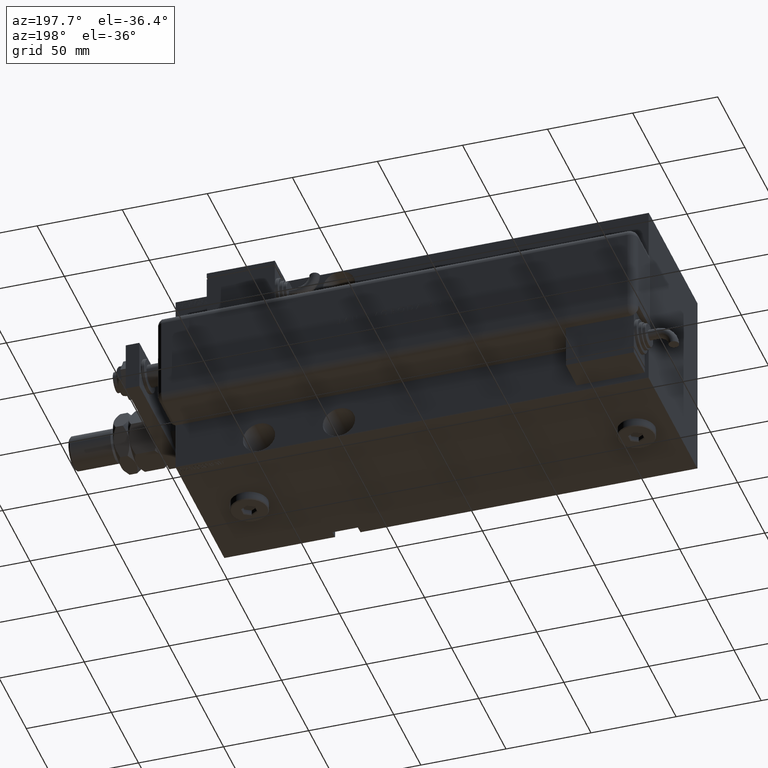
[diagram: clean part render]
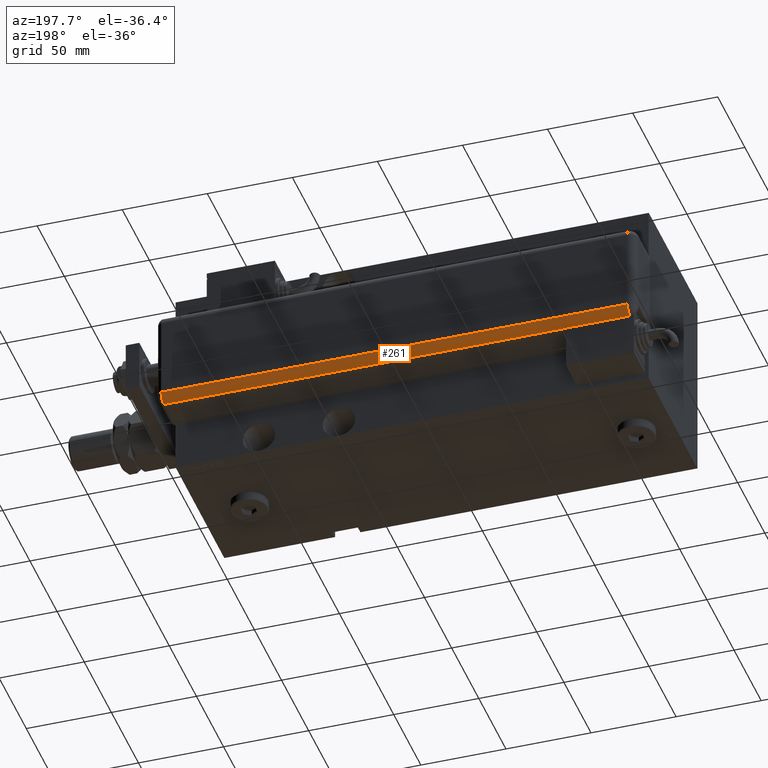
[diagram: same view with one face highlighted and labeled with its STEP entity id]
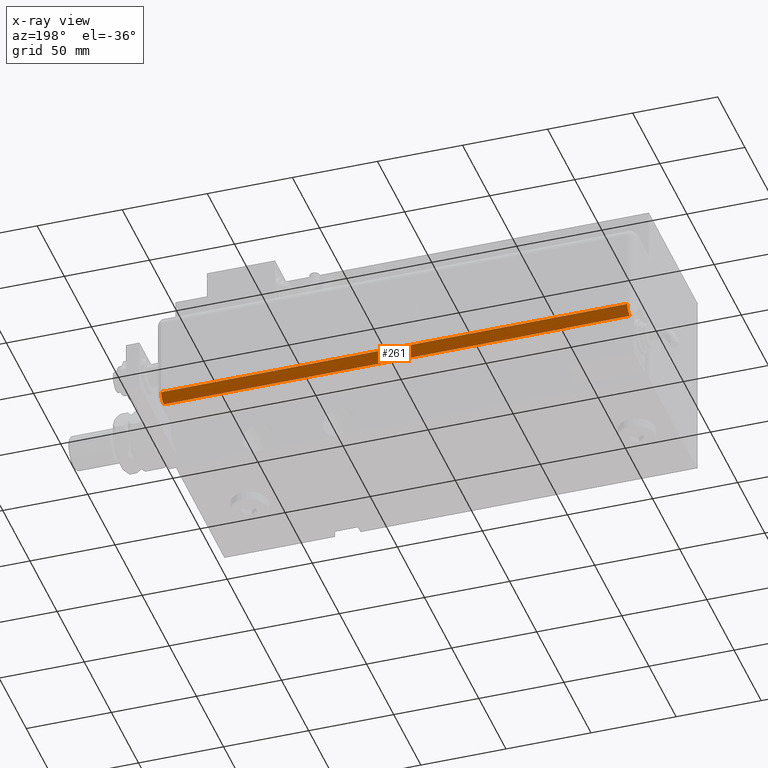
[diagram: x-ray of the same camera — body ghosted, the highlighted face saturated]
A machine part, auxiliary view. The second image highlights one B-rep face of the part: STEP entity #261.
The next image is the same camera in x-ray: the body ghosted, the highlighted face saturated — about 0% of this face is hidden behind the body in this view.
In plain terms, the highlighted cylindrical surface (edge-blend (fillet) strip) has radius 5 mm, axis along (-1, -0, -0).
Its self-contained STEP definition (entity closure, byte-faithful):
#261 = ADVANCED_FACE ( 'NONE', ( #965 ), #49163, .T. ) ;
#303 = CARTESIAN_POINT ( 'NONE',  ( 28.99599839871871154, 20.99999999999999289, 43.00000000000000000 ) ) ;
#965 = FACE_OUTER_BOUND ( 'NONE', #17169, .T. ) ;
#1740 = VERTEX_POINT ( 'NONE', #2206 ) ;
#2206 = CARTESIAN_POINT ( 'NONE',  ( 28.99599839871871154, 21.00000000000000000, 5.000000000000004441 ) ) ;
#2603 = EDGE_CURVE ( 'NONE', #1740, #2897, #40304, .T. ) ;
#2897 = VERTEX_POINT ( 'NONE', #35213 ) ;
#3430 = CARTESIAN_POINT ( 'NONE',  ( 23.99999999999999289, 20.79999999999998295, 5.000000000000004441 ) ) ;
#3733 = DIRECTION ( 'NONE',  ( -0.000000000000000000, -0.000000000000000000, 1.000000000000000000 ) ) ;
#5454 = VECTOR ( 'NONE', #10615, 1000.000000000000000 ) ;
#6273 = VECTOR ( 'NONE', #28604, 1000.000000000000000 ) ;
#6921 = DIRECTION ( 'NONE',  ( -0.000000000000000000, -0.000000000000000000, 1.000000000000000000 ) ) ;
#9530 = EDGE_CURVE ( 'NONE', #40754, #33545, #55240, .T. ) ;
#9778 = VECTOR ( 'NONE', #34177, 1000.000000000000000 ) ;
#10615 = DIRECTION ( 'NONE',  ( -0.000000000000000000, -0.000000000000000000, 1.000000000000000000 ) ) ;
#11754 = CARTESIAN_POINT ( 'NONE',  ( 23.99999999999999289, 20.79999999999998295, 279.0000000000000000 ) ) ;
#13464 = LINE ( 'NONE', #47130, #6273 ) ;
#13938 = CARTESIAN_POINT ( 'NONE',  ( 23.99999999999999289, 20.79999999999998295, 42.99999999999998579 ) ) ;
#14712 = VERTEX_POINT ( 'NONE', #30055 ) ;
#17056 = ORIENTED_EDGE ( 'NONE', *, *, #9530, .F. ) ;
#17169 = EDGE_LOOP ( 'NONE', ( #17056, #49320, #43555, #37618, #28905, #19999 ) ) ;
#17270 = EDGE_CURVE ( 'NONE', #32438, #14712, #24819, .T. ) ;
#18283 = DIRECTION ( 'NONE',  ( -0.000000000000000000, 0.000000000000000000, -1.000000000000000000 ) ) ;
#19999 = ORIENTED_EDGE ( 'NONE', *, *, #48099, .F. ) ;
#24764 = DIRECTION ( 'NONE',  ( -1.000000000000000000, 0.000000000000000000, 0.000000000000000000 ) ) ;
#24819 = CIRCLE ( 'NONE', #35816, 5.000000000000000888 ) ;
#24831 = CARTESIAN_POINT ( 'NONE',  ( 28.99999999999999645, 20.79999999999998295, 279.0000000000000000 ) ) ;
#25132 = LINE ( 'NONE', #24831, #5454 ) ;
#28604 = DIRECTION ( 'NONE',  ( -0.000000000000000000, -0.000000000000000000, 1.000000000000000000 ) ) ;
#28905 = ORIENTED_EDGE ( 'NONE', *, *, #17270, .F. ) ;
#29525 = CARTESIAN_POINT ( 'NONE',  ( 23.99999999999999289, 25.79999999999998295, 279.0000000000000000 ) ) ;
#30055 = CARTESIAN_POINT ( 'NONE',  ( 23.99999999999999289, 25.79999999999998295, 279.0000000000000000 ) ) ;
#32438 = VERTEX_POINT ( 'NONE', #39191 ) ;
#32499 = DIRECTION ( 'NONE',  ( 1.000000000000000000, -6.383782391594648845E-14, 0.000000000000000000 ) ) ;
#33545 = VERTEX_POINT ( 'NONE', #36702 ) ;
#34177 = DIRECTION ( 'NONE',  ( 0.000000000000000000, 0.000000000000000000, -1.000000000000000000 ) ) ;
#35213 = CARTESIAN_POINT ( 'NONE',  ( 23.99999999999999289, 25.79999999999998295, 5.000000000000004441 ) ) ;
#35250 = AXIS2_PLACEMENT_3D ( 'NONE', #11754, #39901, #24764 ) ;
#35816 = AXIS2_PLACEMENT_3D ( 'NONE', #39377, #6921, #59147 ) ;
#36702 = CARTESIAN_POINT ( 'NONE',  ( 28.99999999999999645, 20.79999999999998295, 43.00000000000000000 ) ) ;
#37618 = ORIENTED_EDGE ( 'NONE', *, *, #58472, .F. ) ;
#38484 = AXIS2_PLACEMENT_3D ( 'NONE', #13938, #18283, #32499 ) ;
#39191 = CARTESIAN_POINT ( 'NONE',  ( 28.99999999999999645, 20.79999999999998295, 279.0000000000000000 ) ) ;
#39377 = CARTESIAN_POINT ( 'NONE',  ( 23.99999999999999289, 20.79999999999998295, 279.0000000000000000 ) ) ;
#39901 = DIRECTION ( 'NONE',  ( 0.000000000000000000, 0.000000000000000000, -1.000000000000000000 ) ) ;
#40304 = CIRCLE ( 'NONE', #59077, 5.000000000000000888 ) ;
#40754 = VERTEX_POINT ( 'NONE', #303 ) ;
#41128 = DIRECTION ( 'NONE',  ( -1.000000000000000000, 0.000000000000000000, 0.000000000000000000 ) ) ;
#43555 = ORIENTED_EDGE ( 'NONE', *, *, #2603, .T. ) ;
#44106 = EDGE_CURVE ( 'NONE', #1740, #40754, #13464, .T. ) ;
#47130 = CARTESIAN_POINT ( 'NONE',  ( 28.99599839871871154, 20.99999999999995737, 279.0000000000000000 ) ) ;
#48099 = EDGE_CURVE ( 'NONE', #33545, #32438, #25132, .T. ) ;
#49163 = CYLINDRICAL_SURFACE ( 'NONE', #35250, 5.000000000000000888 ) ;
#49320 = ORIENTED_EDGE ( 'NONE', *, *, #44106, .F. ) ;
#53331 = LINE ( 'NONE', #29525, #9778 ) ;
#55240 = CIRCLE ( 'NONE', #38484, 5.000000000000000888 ) ;
#58472 = EDGE_CURVE ( 'NONE', #14712, #2897, #53331, .T. ) ;
#59077 = AXIS2_PLACEMENT_3D ( 'NONE', #3430, #3733, #41128 ) ;
#59147 = DIRECTION ( 'NONE',  ( -1.000000000000000000, 0.000000000000000000, 0.000000000000000000 ) ) ;